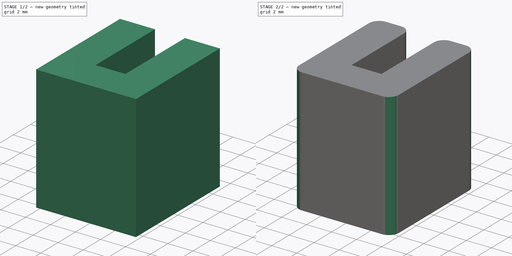
[diagram: build sequence overview — one tinted view per stage of 2, left to right]
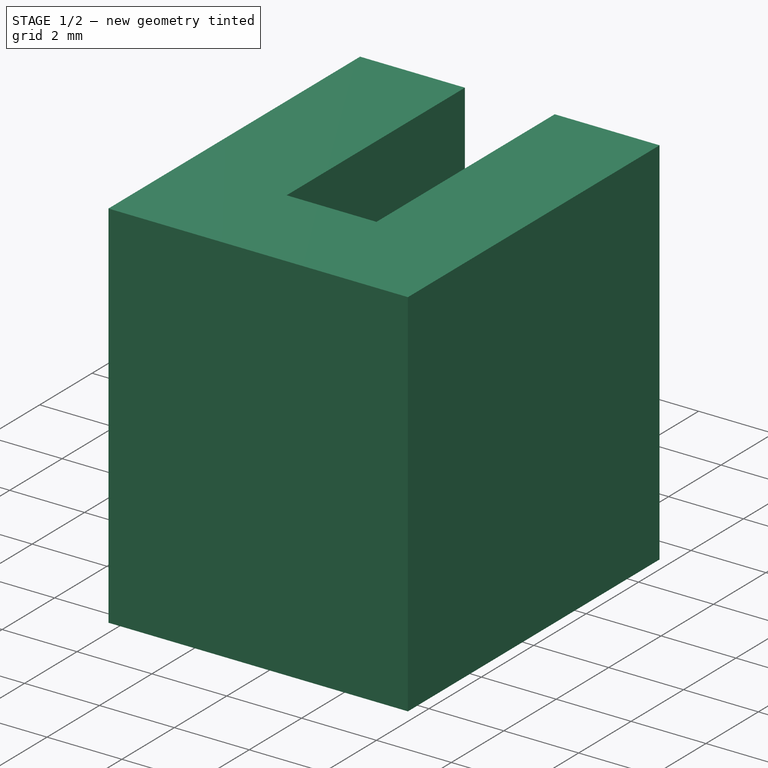
[diagram: stage 1 of 2 — iso view after this stage's code; geometry added in this stage tinted green]
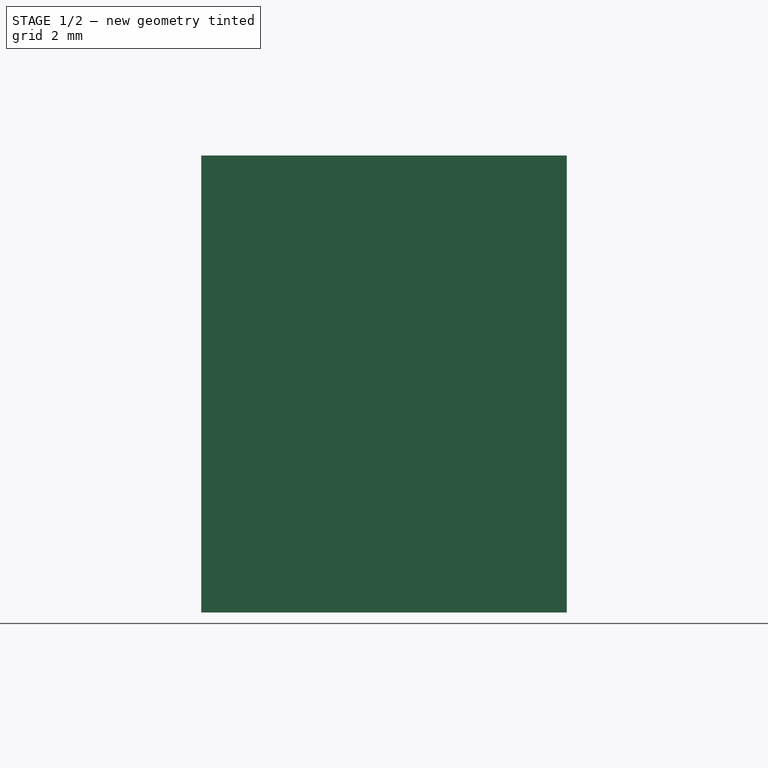
[diagram: stage 1 of 2 — front view after this stage's code; geometry added in this stage tinted green]
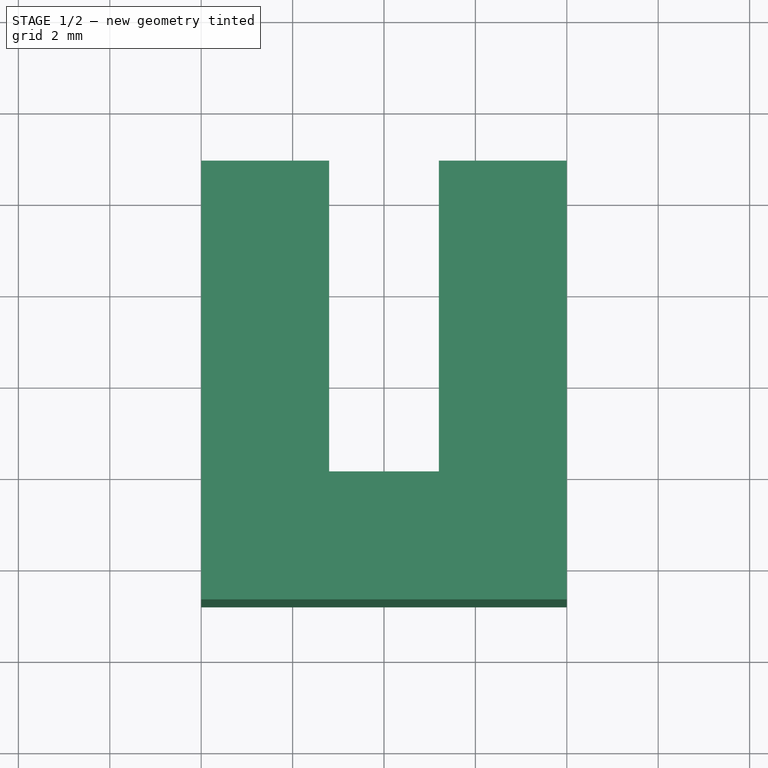
[diagram: stage 1 of 2 — top view after this stage's code; geometry added in this stage tinted green]
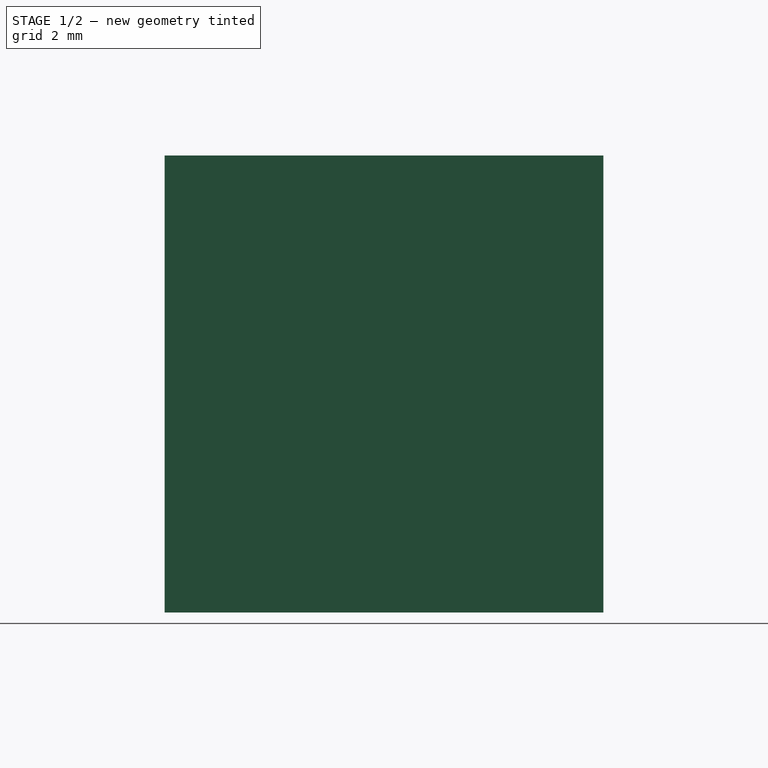
[diagram: stage 1 of 2 — right view after this stage's code; geometry added in this stage tinted green]
FCSTD DOCUMENT  (FreeCAD 0.16R)
Label: BeltClip
License: All rights reserved
LicenseURL: http://en.wikipedia.org/wiki/All_rights_reserved
objects: Sketcher::SketchObject×1, PartDesign::Pad×1, PartDesign::Fillet×1
note: 4 computed .brp shape members not serialized (recipe doc carries the construction recipe); baked Part::Feature solids carry a one-line shape summary decoded from their .brp

FEATURE [Sketcher::SketchObject] Sketch
  sketch-geometry (8):
    g0: LineSegment StartX=-4 StartY=4.8 StartZ=0 EndX=-4 EndY=-4.8 EndZ=0
    g1: LineSegment StartX=-4 StartY=-4.8 StartZ=0 EndX=4 EndY=-4.8 EndZ=0
    g2: LineSegment StartX=4 StartY=-4.8 StartZ=0 EndX=4 EndY=4.8 EndZ=0
    g3: LineSegment StartX=4 StartY=4.8 StartZ=0 EndX=1.2 EndY=4.8 EndZ=0
    g4: LineSegment StartX=1.2 StartY=4.8 StartZ=0 EndX=1.2 EndY=-2 EndZ=0
    g5: LineSegment StartX=1.2 StartY=-2 StartZ=0 EndX=-1.2 EndY=-2 EndZ=0
    g6: LineSegment StartX=-1.2 StartY=-2 StartZ=0 EndX=-1.2 EndY=4.8 EndZ=0
    g7: LineSegment StartX=-1.2 StartY=4.8 StartZ=0 EndX=-4 EndY=4.8 EndZ=0
  constraints (23):
    c: Vertical(g0)
    c: Coincident(g0,g1)
    c: Horizontal(g1)
    c: Coincident(g1,g2)
    c: Vertical(g2)
    c: Coincident(g2,g3)
    c: Horizontal(g3)
    c: Coincident(g3,g4)
    c: Vertical(g4)
    c: Coincident(g4,g5)
    c: Horizontal(g5)
    c: Coincident(g5,g6)
    c: Vertical(g6)
    c: Coincident(g6,g7)
    c: Horizontal(g7)
    c: Coincident(g0,g7)
    c: Symmetric(g6,g3,g-2)
    c: Symmetric(g0,g2,g-2)
    c: DistanceX(g6,g3) = 2.4
    c: DistanceX(g7,g7) = 2.8
    c: DistanceY(g6,g6) = 6.8
    c: DistanceY(g0,g5) = 2.8
    c: Symmetric(g0,g0,g-1)
FEATURE [PartDesign::Pad] Pad
  Length = 10
  Length2 = 100
  Sketch = -> Sketch
  Type = 0
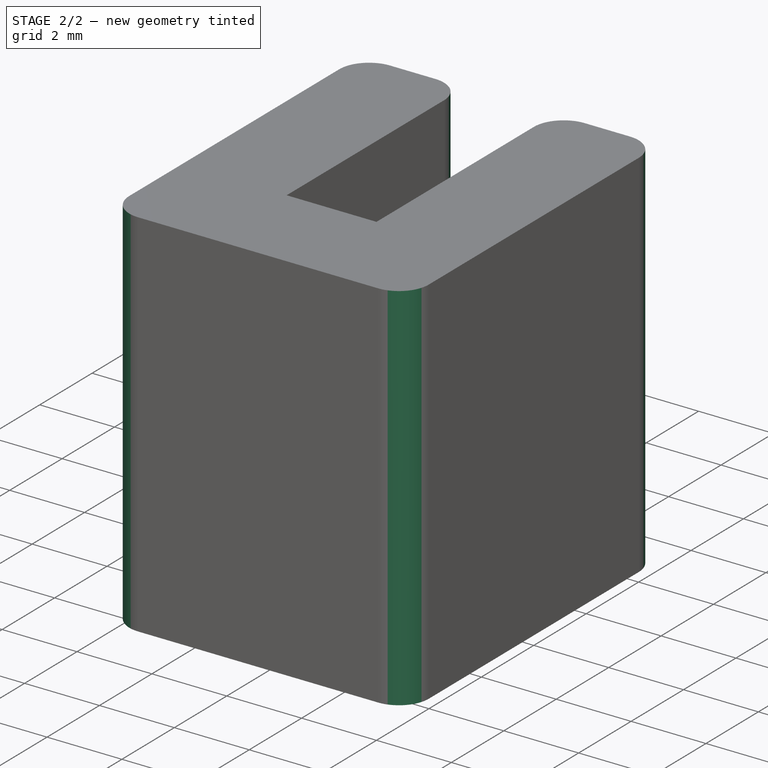
[diagram: stage 2 of 2 — iso view after this stage's code; geometry added in this stage tinted green]
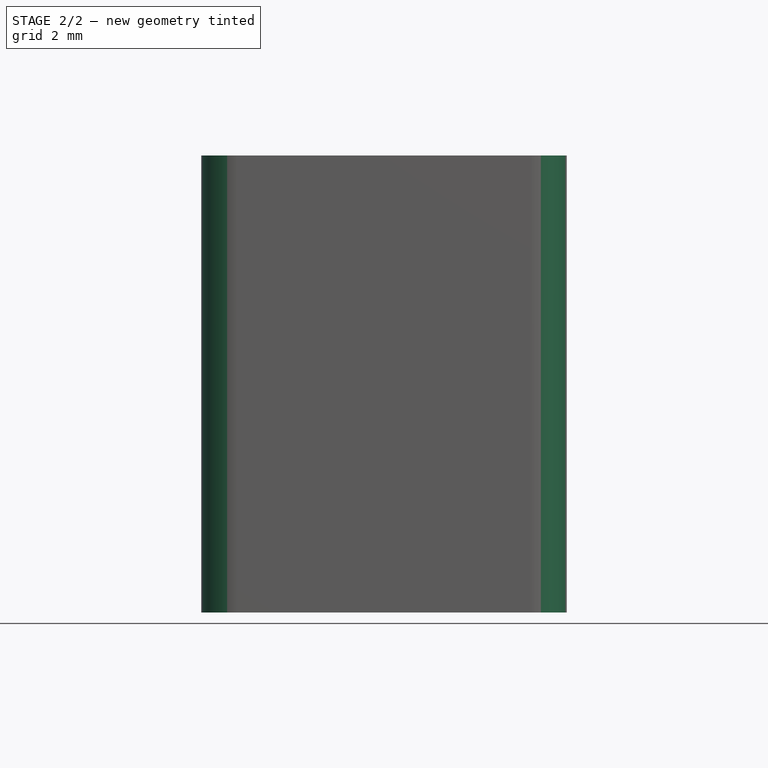
[diagram: stage 2 of 2 — front view after this stage's code; geometry added in this stage tinted green]
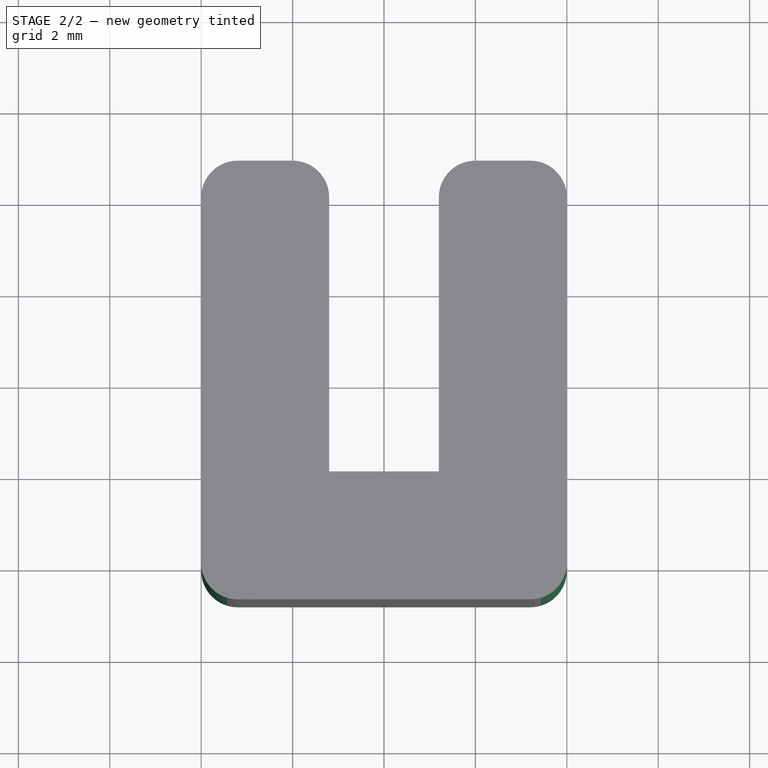
[diagram: stage 2 of 2 — top view after this stage's code; geometry added in this stage tinted green]
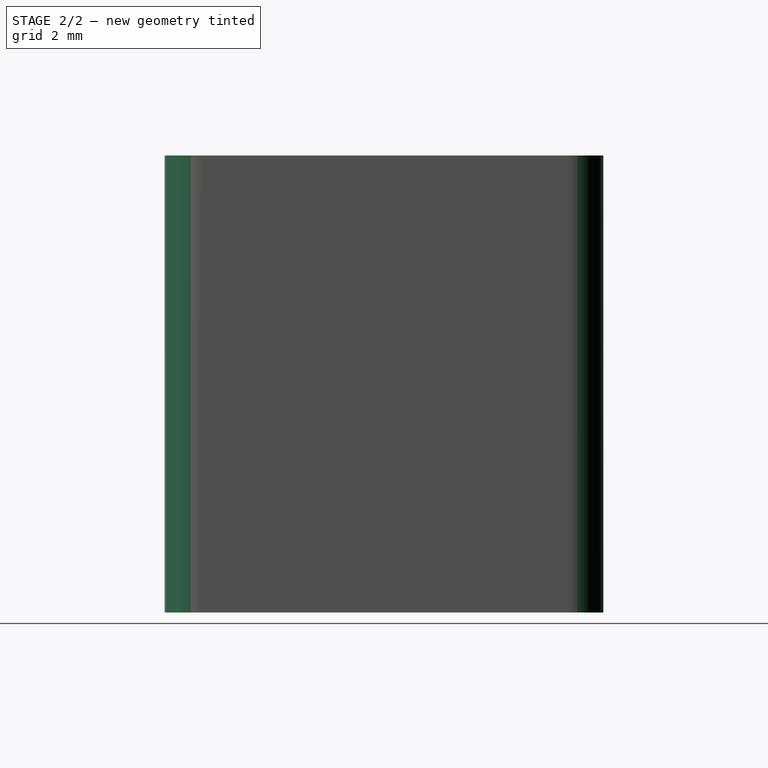
[diagram: stage 2 of 2 — right view after this stage's code; geometry added in this stage tinted green]
FEATURE [PartDesign::Fillet] Fillet
  Base = -> Pad [Edge2,Edge5,Edge8,Edge11,Edge1,Edge20]
  Radius = 0.8
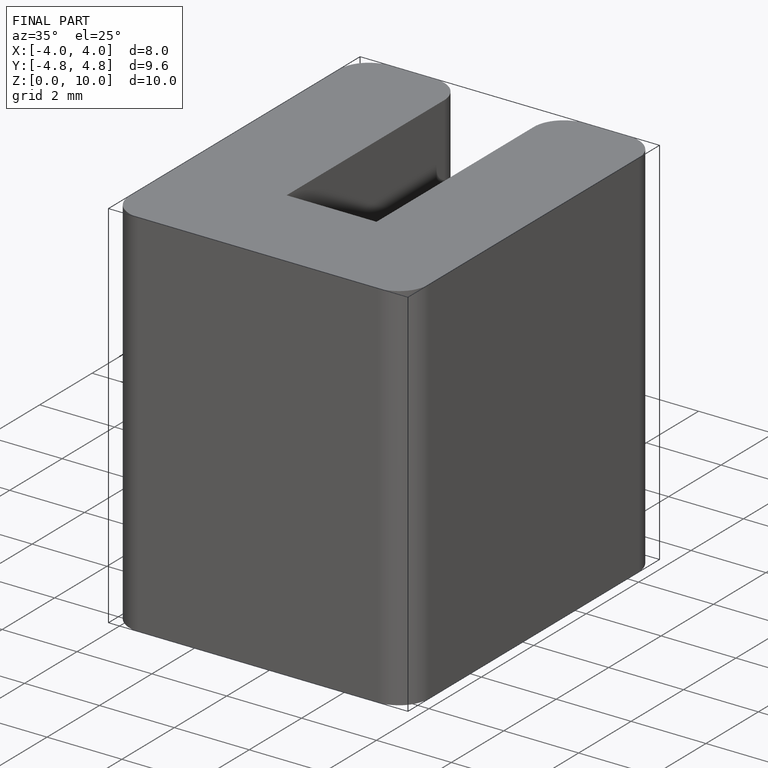
[diagram: finished part — iso view with bounding-box wireframe]
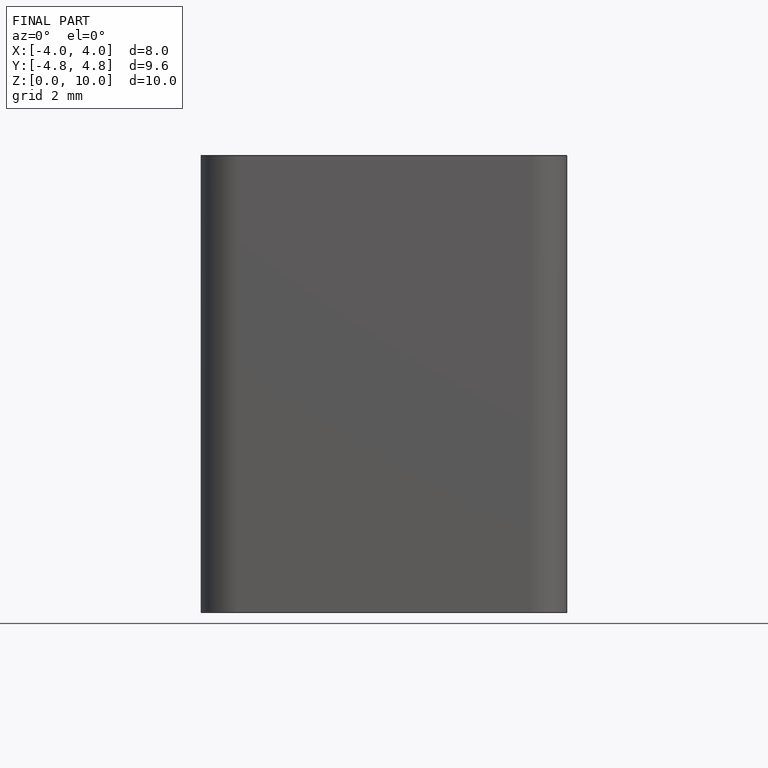
[diagram: finished part — front view with bounding-box wireframe]
